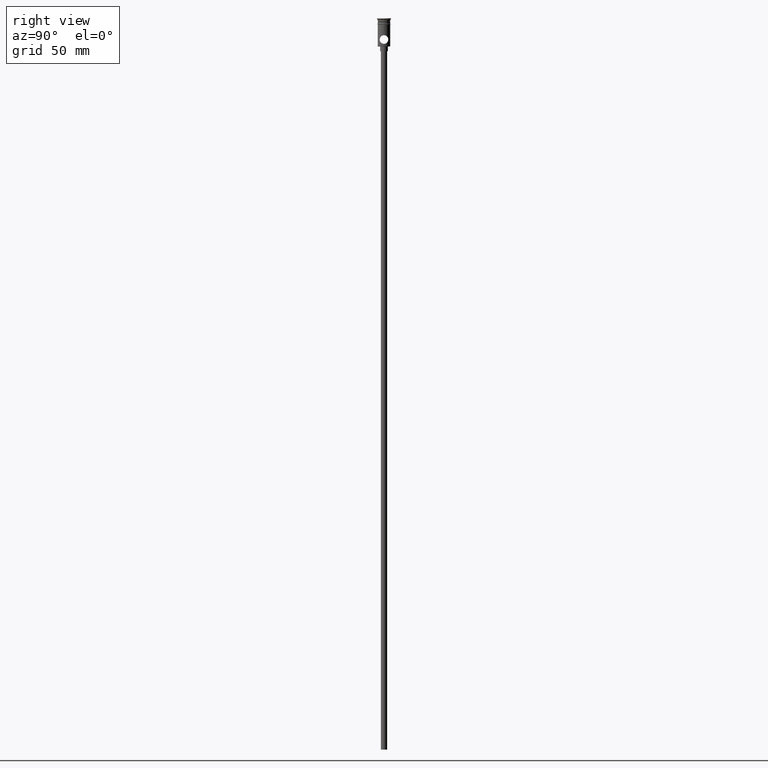
[diagram: clean part render]
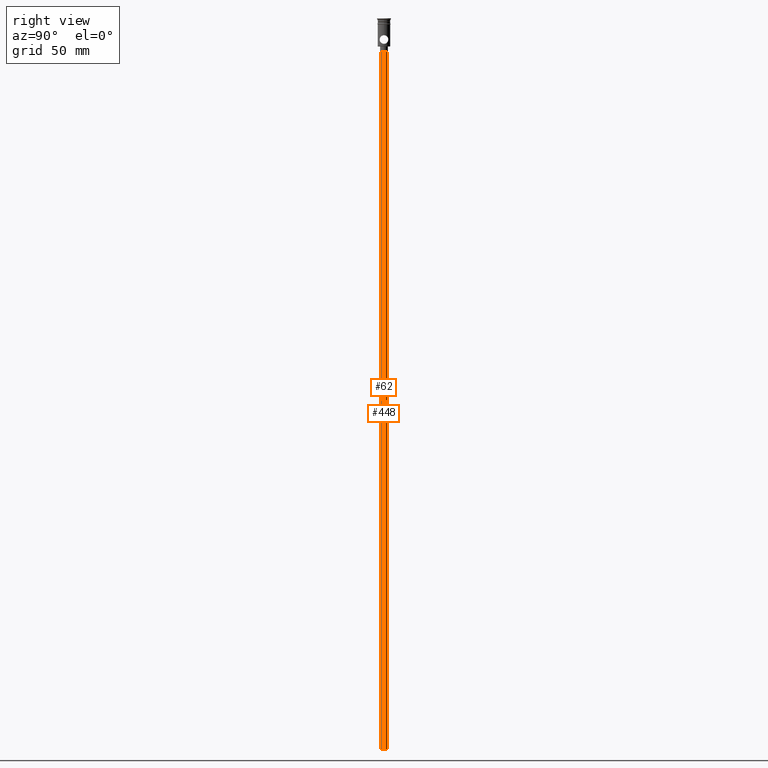
[diagram: same view with one multi-face feature highlighted, each face labeled with its STEP entity id]
A machine part, right view. The highlighted faces form ONE feature: a constant-radius fillet chain: 2 tangent blend faces with common blend radius 2 mm. The faces share edges in the B-rep.
Their STEP definitions:
[1] entity #62 (Cylinder):
#62 = ADVANCED_FACE ( 'NONE', ( #1400 ), #737, .T. ) ;
#87 = DIRECTION ( 'NONE',  ( 0.000000000000000000, 0.000000000000000000, -1.000000000000000000 ) ) ;
#100 = CIRCLE ( 'NONE', #519, 2.000000000000000000 ) ;
#103 = EDGE_CURVE ( 'NONE', #824, #1275, #100, .T. ) ;
#144 = ORIENTED_EDGE ( 'NONE', *, *, #1430, .T. ) ;
#148 = DIRECTION ( 'NONE',  ( -1.000000000000000000, 0.000000000000000000, 0.000000000000000000 ) ) ;
#150 = LINE ( 'NONE', #1043, #396 ) ;
#159 = CARTESIAN_POINT ( 'NONE',  ( 2.000000000000000000, 0.000000000000000000, -20.99999999999999645 ) ) ;
#193 = CARTESIAN_POINT ( 'NONE',  ( 0.000000000000000000, 0.000000000000000000, -468.0000000000000000 ) ) ;
#200 = VECTOR ( 'NONE', #1411, 1000.000000000000000 ) ;
#207 = LINE ( 'NONE', #943, #200 ) ;
#310 = EDGE_CURVE ( 'NONE', #1332, #976, #923, .T. ) ;
#396 = VECTOR ( 'NONE', #612, 1000.000000000000000 ) ;
#500 = CARTESIAN_POINT ( 'NONE',  ( -2.000000000000000000, 2.449293598294706414E-16, -20.99999999999999645 ) ) ;
#512 = ORIENTED_EDGE ( 'NONE', *, *, #310, .T. ) ;
#519 = AXIS2_PLACEMENT_3D ( 'NONE', #193, #87, #961 ) ;
#612 = DIRECTION ( 'NONE',  ( -0.000000000000000000, -0.000000000000000000, 1.000000000000000000 ) ) ;
#672 = EDGE_LOOP ( 'NONE', ( #1321, #767, #144, #512 ) ) ;
#737 = CYLINDRICAL_SURFACE ( 'NONE', #762, 2.000000000000000000 ) ;
#752 = CARTESIAN_POINT ( 'NONE',  ( 0.000000000000000000, 0.000000000000000000, -468.0000000000000000 ) ) ;
#762 = AXIS2_PLACEMENT_3D ( 'NONE', #752, #1180, #1190 ) ;
#767 = ORIENTED_EDGE ( 'NONE', *, *, #103, .F. ) ;
#824 = VERTEX_POINT ( 'NONE', #1077 ) ;
#923 = CIRCLE ( 'NONE', #1413, 2.000000000000000000 ) ;
#943 = CARTESIAN_POINT ( 'NONE',  ( -2.000000000000000000, 2.449293598294706414E-16, -468.0000000000000000 ) ) ;
#961 = DIRECTION ( 'NONE',  ( -1.000000000000000000, 0.000000000000000000, 0.000000000000000000 ) ) ;
#976 = VERTEX_POINT ( 'NONE', #500 ) ;
#1009 = EDGE_CURVE ( 'NONE', #1275, #976, #207, .T. ) ;
#1043 = CARTESIAN_POINT ( 'NONE',  ( 2.000000000000000000, 0.000000000000000000, -468.0000000000000000 ) ) ;
#1077 = CARTESIAN_POINT ( 'NONE',  ( 2.000000000000000000, 0.000000000000000000, -468.0000000000000000 ) ) ;
#1140 = CARTESIAN_POINT ( 'NONE',  ( 0.000000000000000000, 0.000000000000000000, -20.99999999999999645 ) ) ;
#1147 = CARTESIAN_POINT ( 'NONE',  ( -2.000000000000000000, 2.449293598294706414E-16, -468.0000000000000000 ) ) ;
#1180 = DIRECTION ( 'NONE',  ( -0.000000000000000000, -0.000000000000000000, 1.000000000000000000 ) ) ;
#1190 = DIRECTION ( 'NONE',  ( 1.000000000000000000, 0.000000000000000000, 0.000000000000000000 ) ) ;
#1247 = DIRECTION ( 'NONE',  ( 0.000000000000000000, 0.000000000000000000, -1.000000000000000000 ) ) ;
#1275 = VERTEX_POINT ( 'NONE', #1147 ) ;
#1321 = ORIENTED_EDGE ( 'NONE', *, *, #1009, .F. ) ;
#1332 = VERTEX_POINT ( 'NONE', #159 ) ;
#1400 = FACE_OUTER_BOUND ( 'NONE', #672, .T. ) ;
#1411 = DIRECTION ( 'NONE',  ( -0.000000000000000000, -0.000000000000000000, 1.000000000000000000 ) ) ;
#1413 = AXIS2_PLACEMENT_3D ( 'NONE', #1140, #1247, #148 ) ;
#1430 = EDGE_CURVE ( 'NONE', #824, #1332, #150, .T. ) ;
[2] entity #448 (Cylinder):
#28 = AXIS2_PLACEMENT_3D ( 'NONE', #1260, #928, #372 ) ;
#74 = CIRCLE ( 'NONE', #288, 2.000000000000000000 ) ;
#150 = LINE ( 'NONE', #1043, #396 ) ;
#159 = CARTESIAN_POINT ( 'NONE',  ( 2.000000000000000000, 0.000000000000000000, -20.99999999999999645 ) ) ;
#175 = EDGE_CURVE ( 'NONE', #976, #1332, #676, .T. ) ;
#198 = AXIS2_PLACEMENT_3D ( 'NONE', #272, #701, #1143 ) ;
#200 = VECTOR ( 'NONE', #1411, 1000.000000000000000 ) ;
#207 = LINE ( 'NONE', #943, #200 ) ;
#214 = EDGE_CURVE ( 'NONE', #1275, #824, #74, .T. ) ;
#236 = ORIENTED_EDGE ( 'NONE', *, *, #1009, .T. ) ;
#243 = EDGE_LOOP ( 'NONE', ( #258, #236, #1058, #647 ) ) ;
#258 = ORIENTED_EDGE ( 'NONE', *, *, #214, .F. ) ;
#272 = CARTESIAN_POINT ( 'NONE',  ( 0.000000000000000000, 0.000000000000000000, -468.0000000000000000 ) ) ;
#288 = AXIS2_PLACEMENT_3D ( 'NONE', #841, #749, #828 ) ;
#372 = DIRECTION ( 'NONE',  ( -1.000000000000000000, 0.000000000000000000, 0.000000000000000000 ) ) ;
#396 = VECTOR ( 'NONE', #612, 1000.000000000000000 ) ;
#448 = ADVANCED_FACE ( 'NONE', ( #920 ), #1263, .T. ) ;
#500 = CARTESIAN_POINT ( 'NONE',  ( -2.000000000000000000, 2.449293598294706414E-16, -20.99999999999999645 ) ) ;
#612 = DIRECTION ( 'NONE',  ( -0.000000000000000000, -0.000000000000000000, 1.000000000000000000 ) ) ;
#647 = ORIENTED_EDGE ( 'NONE', *, *, #1430, .F. ) ;
#676 = CIRCLE ( 'NONE', #28, 2.000000000000000000 ) ;
#701 = DIRECTION ( 'NONE',  ( -0.000000000000000000, -0.000000000000000000, 1.000000000000000000 ) ) ;
#749 = DIRECTION ( 'NONE',  ( 0.000000000000000000, 0.000000000000000000, -1.000000000000000000 ) ) ;
#824 = VERTEX_POINT ( 'NONE', #1077 ) ;
#828 = DIRECTION ( 'NONE',  ( -1.000000000000000000, 0.000000000000000000, 0.000000000000000000 ) ) ;
#841 = CARTESIAN_POINT ( 'NONE',  ( 0.000000000000000000, 0.000000000000000000, -468.0000000000000000 ) ) ;
#920 = FACE_OUTER_BOUND ( 'NONE', #243, .T. ) ;
#928 = DIRECTION ( 'NONE',  ( 0.000000000000000000, 0.000000000000000000, -1.000000000000000000 ) ) ;
#943 = CARTESIAN_POINT ( 'NONE',  ( -2.000000000000000000, 2.449293598294706414E-16, -468.0000000000000000 ) ) ;
#976 = VERTEX_POINT ( 'NONE', #500 ) ;
#1009 = EDGE_CURVE ( 'NONE', #1275, #976, #207, .T. ) ;
#1043 = CARTESIAN_POINT ( 'NONE',  ( 2.000000000000000000, 0.000000000000000000, -468.0000000000000000 ) ) ;
#1058 = ORIENTED_EDGE ( 'NONE', *, *, #175, .T. ) ;
#1077 = CARTESIAN_POINT ( 'NONE',  ( 2.000000000000000000, 0.000000000000000000, -468.0000000000000000 ) ) ;
#1143 = DIRECTION ( 'NONE',  ( 1.000000000000000000, 0.000000000000000000, 0.000000000000000000 ) ) ;
#1147 = CARTESIAN_POINT ( 'NONE',  ( -2.000000000000000000, 2.449293598294706414E-16, -468.0000000000000000 ) ) ;
#1260 = CARTESIAN_POINT ( 'NONE',  ( 0.000000000000000000, 0.000000000000000000, -20.99999999999999645 ) ) ;
#1263 = CYLINDRICAL_SURFACE ( 'NONE', #198, 2.000000000000000000 ) ;
#1275 = VERTEX_POINT ( 'NONE', #1147 ) ;
#1332 = VERTEX_POINT ( 'NONE', #159 ) ;
#1411 = DIRECTION ( 'NONE',  ( -0.000000000000000000, -0.000000000000000000, 1.000000000000000000 ) ) ;
#1430 = EDGE_CURVE ( 'NONE', #824, #1332, #150, .T. ) ;